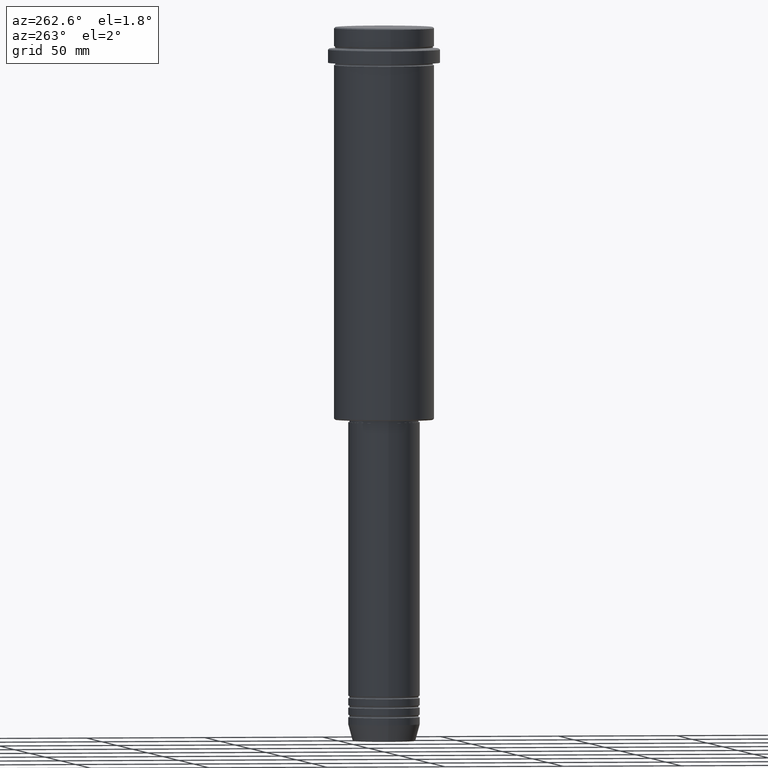
[diagram: clean part render]
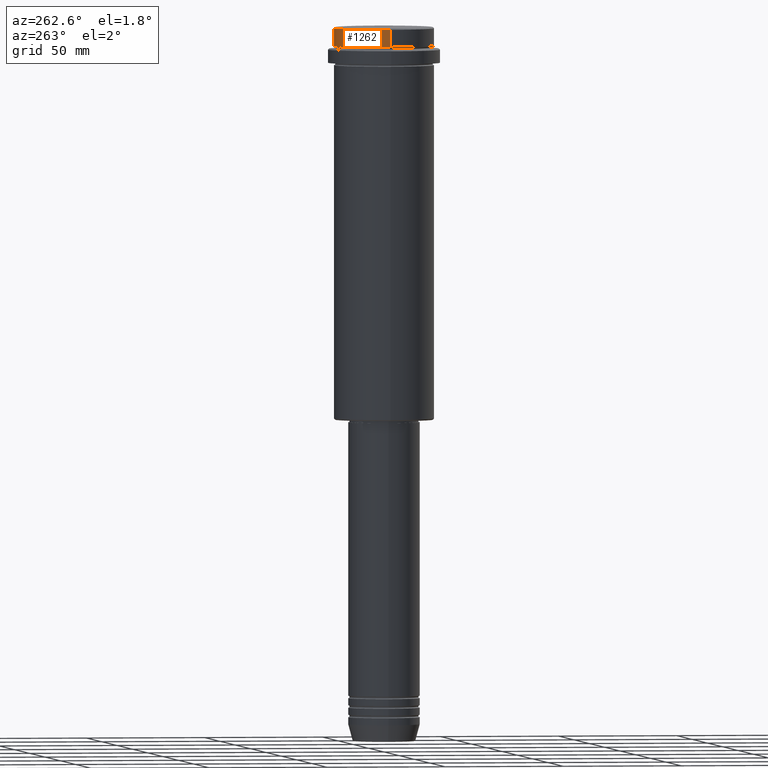
[diagram: same view with one face highlighted and labeled with its STEP entity id]
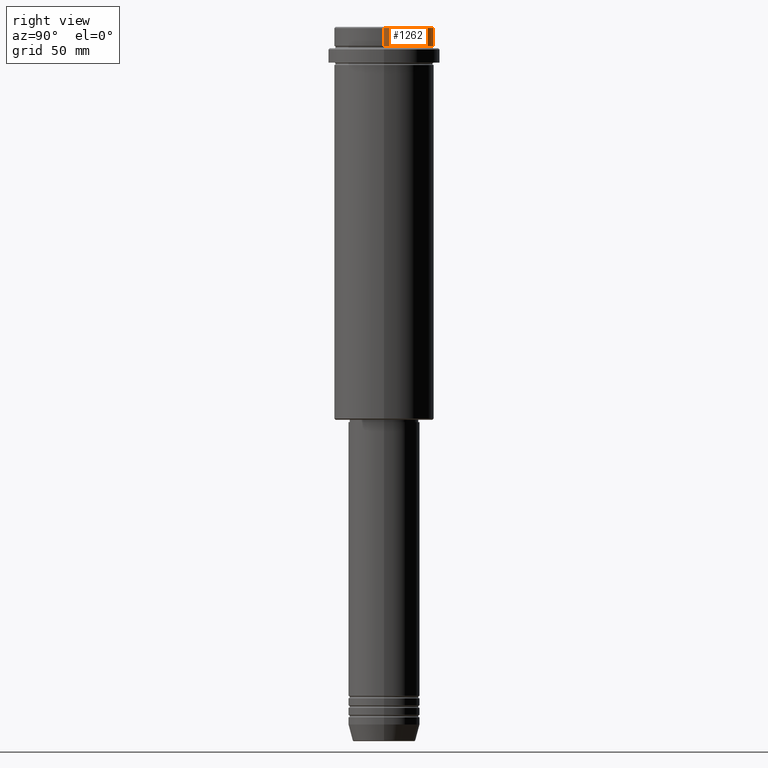
[diagram: same view with one face highlighted and labeled with its STEP entity id]
A machine part, auxiliary view. The second image highlights one B-rep face of the part: STEP entity #1262.
A second angle (right view) of the same face is appended — the face is thin or edge-on in the first view.
In plain terms, the highlighted cylindrical surface (partial cylindrical patch) has radius 21 mm, axis along (-0, -0, 1).
Its self-contained STEP definition (entity closure, byte-faithful):
#117 = DIRECTION ( 'NONE',  ( -0.000000000000000000, -0.000000000000000000, 1.000000000000000000 ) ) ;
#188 = DIRECTION ( 'NONE',  ( 1.000000000000000000, 0.000000000000000000, 0.000000000000000000 ) ) ;
#220 = AXIS2_PLACEMENT_3D ( 'NONE', #1341, #244, #1089 ) ;
#227 = EDGE_LOOP ( 'NONE', ( #1059, #715, #611, #1360 ) ) ;
#244 = DIRECTION ( 'NONE',  ( -0.000000000000000000, -0.000000000000000000, 1.000000000000000000 ) ) ;
#350 = CIRCLE ( 'NONE', #1137, 20.99999999999999645 ) ;
#360 = DIRECTION ( 'NONE',  ( 1.000000000000000000, 0.000000000000000000, 0.000000000000000000 ) ) ;
#605 = CARTESIAN_POINT ( 'NONE',  ( -20.99999999999999645, 2.571758278209441267E-15, 0.000000000000000000 ) ) ;
#611 = ORIENTED_EDGE ( 'NONE', *, *, #1387, .T. ) ;
#613 = DIRECTION ( 'NONE',  ( 0.000000000000000000, 0.000000000000000000, -1.000000000000000000 ) ) ;
#656 = VERTEX_POINT ( 'NONE', #1316 ) ;
#663 = VECTOR ( 'NONE', #117, 1000.000000000000000 ) ;
#715 = ORIENTED_EDGE ( 'NONE', *, *, #1372, .T. ) ;
#773 = VECTOR ( 'NONE', #824, 1000.000000000000000 ) ;
#795 = CARTESIAN_POINT ( 'NONE',  ( 20.99999999999999645, 0.000000000000000000, 0.000000000000000000 ) ) ;
#824 = DIRECTION ( 'NONE',  ( -0.000000000000000000, -0.000000000000000000, 1.000000000000000000 ) ) ;
#905 = CYLINDRICAL_SURFACE ( 'NONE', #220, 20.99999999999999645 ) ;
#950 = CARTESIAN_POINT ( 'NONE',  ( 0.000000000000000000, 0.000000000000000000, -7.999999999999998224 ) ) ;
#979 = CARTESIAN_POINT ( 'NONE',  ( -20.99999999999999645, 2.571758278209441267E-15, -7.999999999999998224 ) ) ;
#1008 = LINE ( 'NONE', #795, #663 ) ;
#1047 = VERTEX_POINT ( 'NONE', #1265 ) ;
#1059 = ORIENTED_EDGE ( 'NONE', *, *, #1184, .T. ) ;
#1089 = DIRECTION ( 'NONE',  ( 1.000000000000000000, 0.000000000000000000, 0.000000000000000000 ) ) ;
#1113 = AXIS2_PLACEMENT_3D ( 'NONE', #950, #1164, #188 ) ;
#1128 = LINE ( 'NONE', #605, #773 ) ;
#1137 = AXIS2_PLACEMENT_3D ( 'NONE', #1241, #613, #360 ) ;
#1164 = DIRECTION ( 'NONE',  ( -0.000000000000000000, -0.000000000000000000, 1.000000000000000000 ) ) ;
#1176 = CIRCLE ( 'NONE', #1113, 20.99999999999999645 ) ;
#1184 = EDGE_CURVE ( 'NONE', #1047, #1267, #1176, .T. ) ;
#1214 = FACE_OUTER_BOUND ( 'NONE', #227, .T. ) ;
#1241 = CARTESIAN_POINT ( 'NONE',  ( 0.000000000000000000, 0.000000000000000000, -0.5000000000000073275 ) ) ;
#1258 = EDGE_CURVE ( 'NONE', #1047, #1379, #1008, .T. ) ;
#1262 = ADVANCED_FACE ( 'NONE', ( #1214 ), #905, .T. ) ;
#1264 = CARTESIAN_POINT ( 'NONE',  ( 20.99999999999999645, 0.000000000000000000, -0.5000000000000073275 ) ) ;
#1265 = CARTESIAN_POINT ( 'NONE',  ( 20.99999999999999645, 0.000000000000000000, -7.999999999999998224 ) ) ;
#1267 = VERTEX_POINT ( 'NONE', #979 ) ;
#1316 = CARTESIAN_POINT ( 'NONE',  ( -20.99999999999999645, 2.571758278209441267E-15, -0.5000000000000073275 ) ) ;
#1341 = CARTESIAN_POINT ( 'NONE',  ( 0.000000000000000000, 0.000000000000000000, 0.000000000000000000 ) ) ;
#1360 = ORIENTED_EDGE ( 'NONE', *, *, #1258, .F. ) ;
#1372 = EDGE_CURVE ( 'NONE', #1267, #656, #1128, .T. ) ;
#1379 = VERTEX_POINT ( 'NONE', #1264 ) ;
#1387 = EDGE_CURVE ( 'NONE', #656, #1379, #350, .T. ) ;